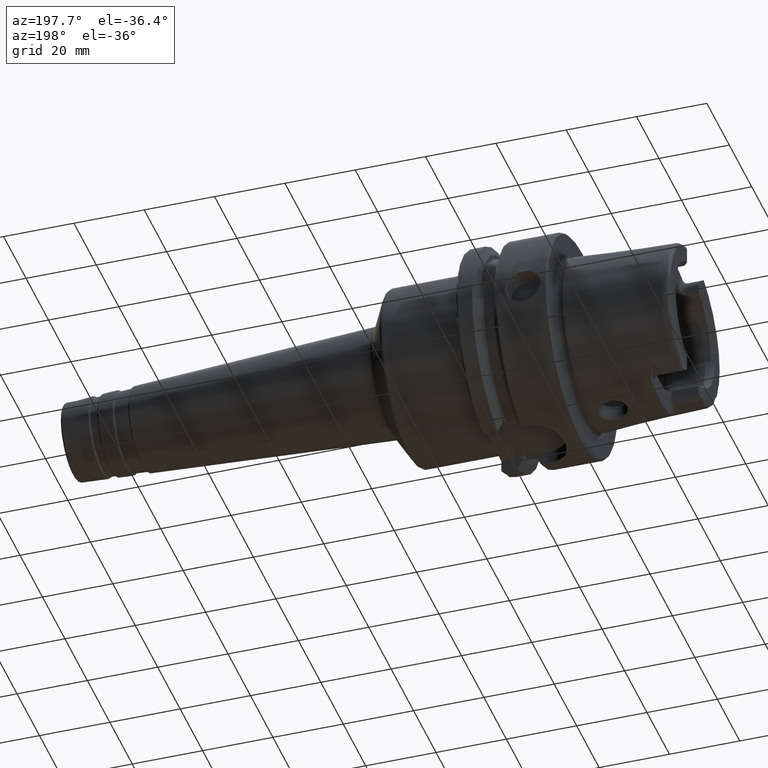
[diagram: clean part render]
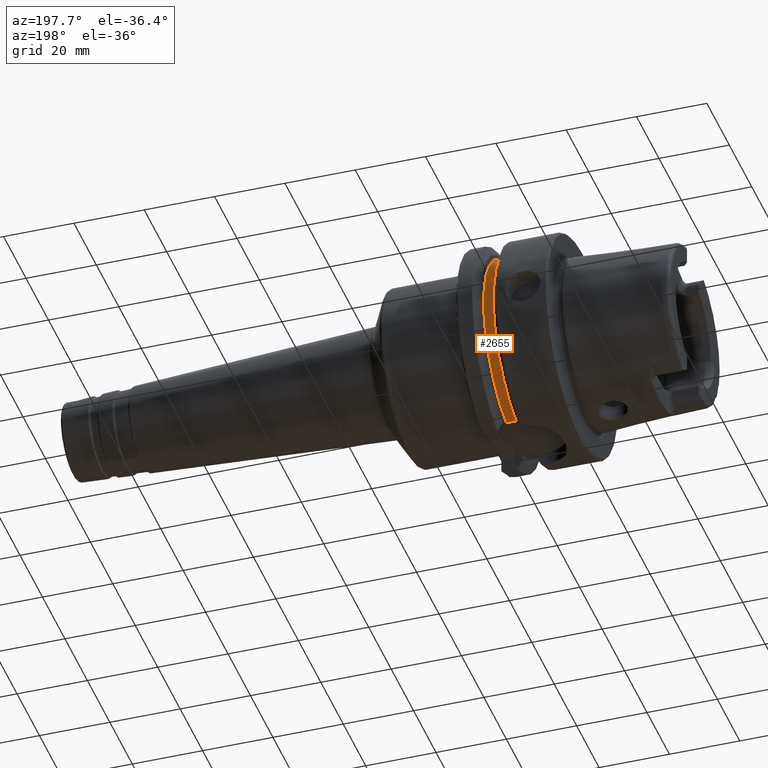
[diagram: same view with one face highlighted and labeled with its STEP entity id]
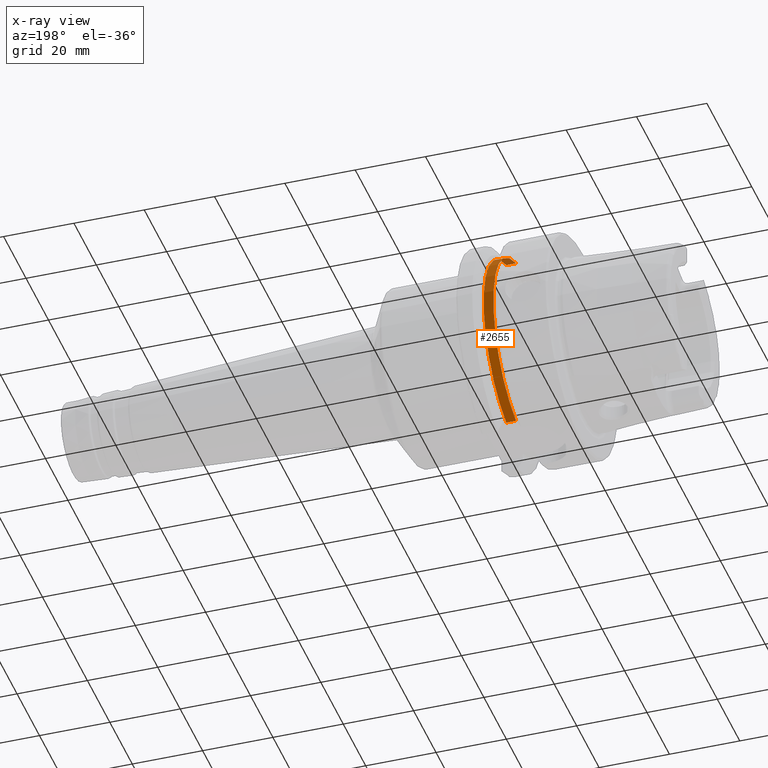
[diagram: x-ray of the same camera — body ghosted, the highlighted face saturated]
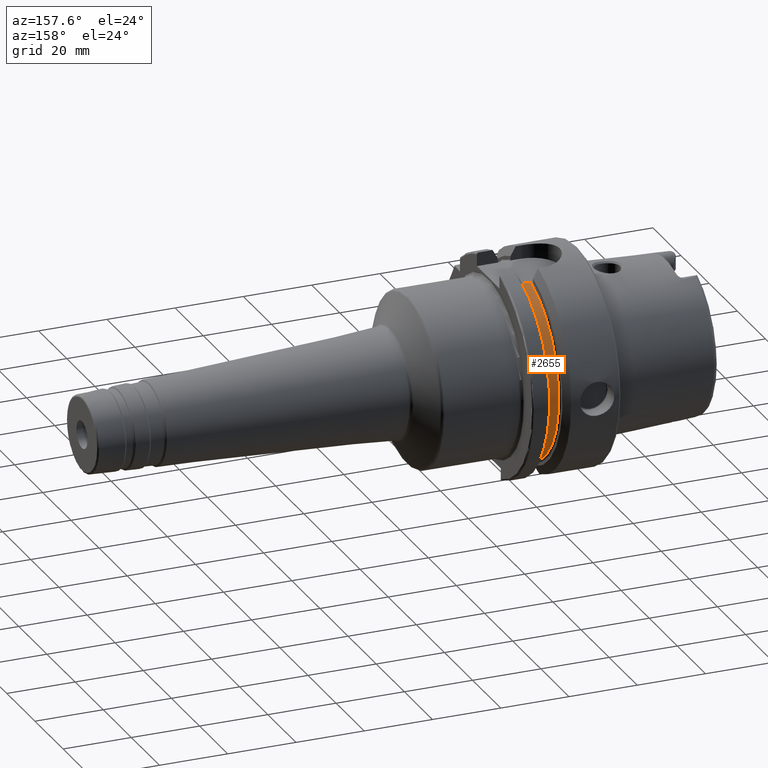
[diagram: same view with one face highlighted and labeled with its STEP entity id]
A machine part, auxiliary view. The second image highlights one B-rep face of the part: STEP entity #2655.
The next image is the same camera in x-ray: the body ghosted, the highlighted face saturated — about 3% of this face is hidden behind the body in this view.
A second angle (auxiliary view) of the same face is appended — the face is thin or edge-on in the first view.
In plain terms, the highlighted cylindrical surface (partial cylindrical patch) has radius 27.5 mm, axis along (1, 0, 0).
Its self-contained STEP definition (entity closure, byte-faithful):
#336=FACE_OUTER_BOUND('',#482,.T.);
#482=EDGE_LOOP('',(#2466,#2467,#2468,#2469));
#570=LINE('',#5133,#687);
#585=LINE('',#5320,#702);
#687=VECTOR('',#3584,10.);
#702=VECTOR('',#3653,10.);
#882=CIRCLE('',#2937,27.5);
#939=CIRCLE('',#3034,27.5);
#1164=VERTEX_POINT('',#5121);
#1165=VERTEX_POINT('',#5132);
#1188=VERTEX_POINT('',#5308);
#1189=VERTEX_POINT('',#5319);
#1525=EDGE_CURVE('',#1165,#1164,#570,.T.);
#1566=EDGE_CURVE('',#1189,#1188,#585,.T.);
#1568=EDGE_CURVE('',#1164,#1189,#882,.T.);
#1649=EDGE_CURVE('',#1165,#1188,#939,.T.);
#2466=ORIENTED_EDGE('',*,*,#1525,.T.);
#2467=ORIENTED_EDGE('',*,*,#1568,.T.);
#2468=ORIENTED_EDGE('',*,*,#1566,.T.);
#2469=ORIENTED_EDGE('',*,*,#1649,.F.);
#2524=CYLINDRICAL_SURFACE('',#3033,27.5);
#2655=ADVANCED_FACE('',(#336),#2524,.T.);
#2937=AXIS2_PLACEMENT_3D('',#5332,#3656,#3657);
#3033=AXIS2_PLACEMENT_3D('',#5544,#3867,#3868);
#3034=AXIS2_PLACEMENT_3D('',#5545,#3869,#3870);
#3584=DIRECTION('',(-1.,0.,0.));
#3653=DIRECTION('',(1.,0.,0.));
#3656=DIRECTION('center_axis',(1.,0.,0.));
#3657=DIRECTION('ref_axis',(0.,0.,-1.));
#3867=DIRECTION('center_axis',(1.,0.,0.));
#3868=DIRECTION('ref_axis',(0.,1.,0.));
#3869=DIRECTION('center_axis',(1.,0.,0.));
#3870=DIRECTION('ref_axis',(0.,0.,-1.));
#5121=CARTESIAN_POINT('',(16.625,7.34846922834952,-26.5));
#5132=CARTESIAN_POINT('',(19.375,7.34846922834952,-26.5));
#5133=CARTESIAN_POINT('',(18.,7.34846922834952,-26.5));
#5308=CARTESIAN_POINT('',(19.375,7.34846922834952,26.5));
#5319=CARTESIAN_POINT('',(16.625,7.34846922834952,26.5));
#5320=CARTESIAN_POINT('',(18.,7.34846922834952,26.5));
#5332=CARTESIAN_POINT('Origin',(16.625,0.,0.));
#5544=CARTESIAN_POINT('Origin',(18.,0.,0.));
#5545=CARTESIAN_POINT('Origin',(19.375,0.,0.));